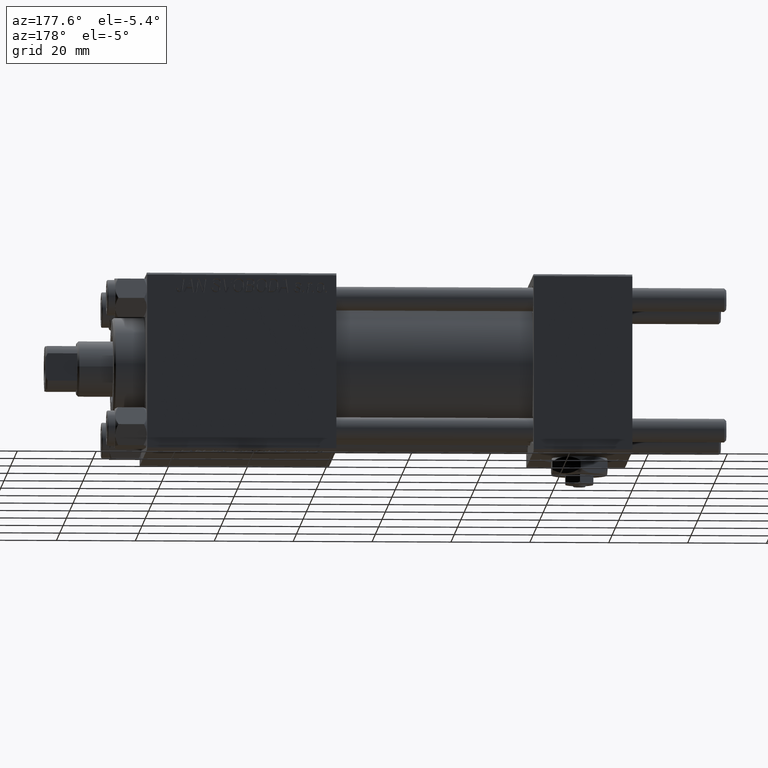
[diagram: clean part render]
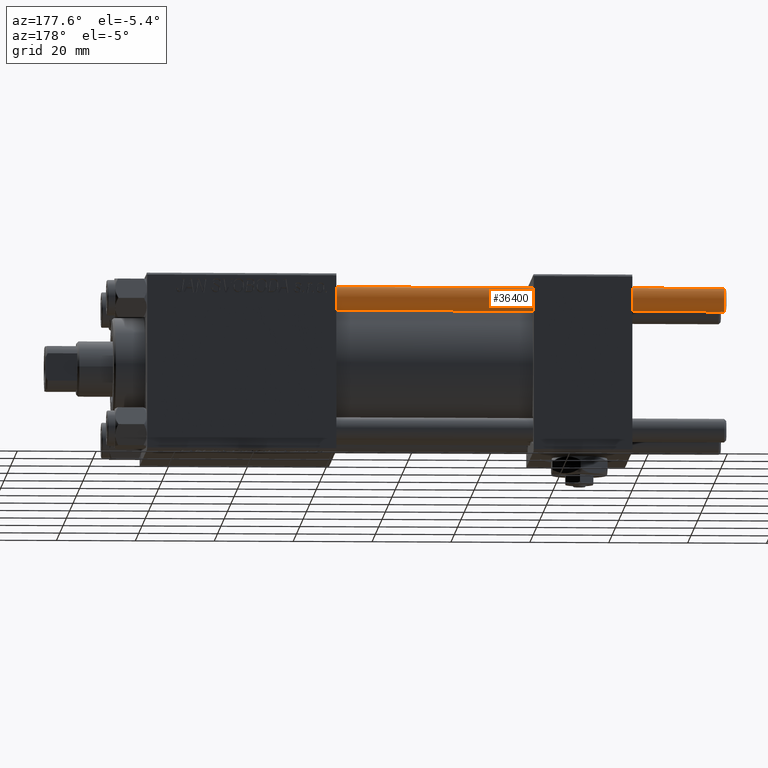
[diagram: same view with one face highlighted and labeled with its STEP entity id]
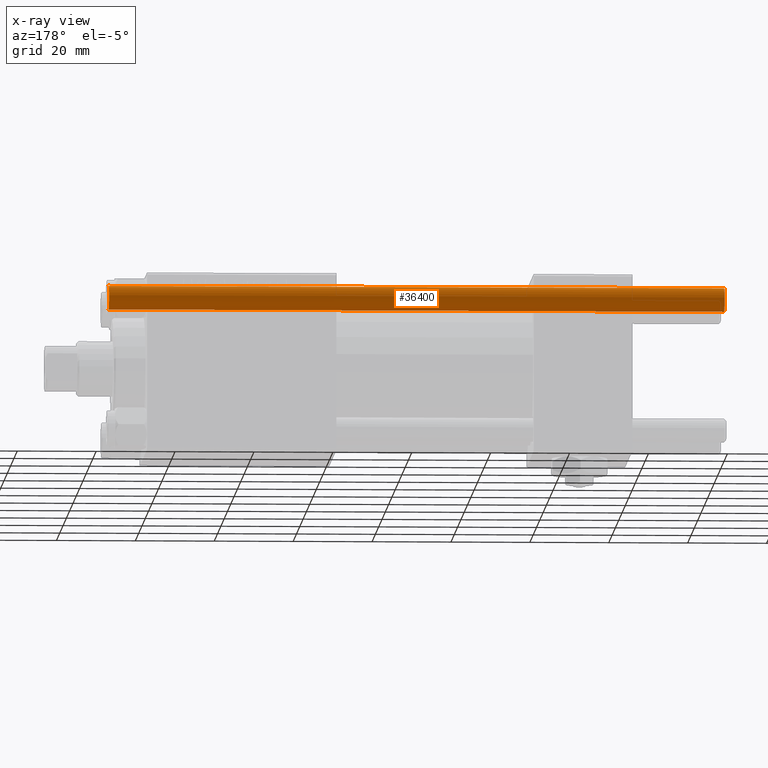
[diagram: x-ray of the same camera — body ghosted, the highlighted face saturated]
A machine part, auxiliary view. The second image highlights one B-rep face of the part: STEP entity #36400.
The next image is the same camera in x-ray: the body ghosted, the highlighted face saturated — about 0% of this face is hidden behind the body in this view.
In plain terms, the highlighted cylindrical surface (edge-blend (fillet) strip) has radius 3 mm, axis along (-1, -0, -0).
Its self-contained STEP definition (entity closure, byte-faithful):
#101 = DIRECTION ( 'NONE',  ( -1.000000000000000000, 0.000000000000000000, 0.000000000000000000 ) ) ;
#466 = DIRECTION ( 'NONE',  ( -0.000000000000000000, -0.000000000000000000, -1.000000000000000000 ) ) ;
#508 = CARTESIAN_POINT ( 'NONE',  ( 3.000000000000000444, 3.673940397442060361E-16, 0.4999999999999726885 ) ) ;
#2075 = AXIS2_PLACEMENT_3D ( 'NONE', #39353, #36198, #101 ) ;
#2854 = CARTESIAN_POINT ( 'NONE',  ( -3.000000000000000444, 0.000000000000000000, 156.5000000000000284 ) ) ;
#3144 = ORIENTED_EDGE ( 'NONE', *, *, #3233, .F. ) ;
#3233 = EDGE_CURVE ( 'NONE', #6104, #36345, #29530, .T. ) ;
#5456 = CARTESIAN_POINT ( 'NONE',  ( -3.000000000000000444, 0.000000000000000000, 157.0000000000000000 ) ) ;
#6104 = VERTEX_POINT ( 'NONE', #2854 ) ;
#6762 = ORIENTED_EDGE ( 'NONE', *, *, #47900, .T. ) ;
#7196 = CARTESIAN_POINT ( 'NONE',  ( 0.000000000000000000, 0.000000000000000000, 0.4999999999999726885 ) ) ;
#7669 = VECTOR ( 'NONE', #12780, 1000.000000000000000 ) ;
#9829 = EDGE_CURVE ( 'NONE', #6104, #39435, #40404, .T. ) ;
#12780 = DIRECTION ( 'NONE',  ( -0.000000000000000000, -0.000000000000000000, -1.000000000000000000 ) ) ;
#16457 = EDGE_CURVE ( 'NONE', #38073, #36345, #23974, .T. ) ;
#16458 = AXIS2_PLACEMENT_3D ( 'NONE', #7196, #32744, #48443 ) ;
#19966 = DIRECTION ( 'NONE',  ( 0.000000000000000000, 0.000000000000000000, -1.000000000000000000 ) ) ;
#20201 = ORIENTED_EDGE ( 'NONE', *, *, #16457, .T. ) ;
#21450 = ORIENTED_EDGE ( 'NONE', *, *, #9829, .T. ) ;
#22650 = FACE_OUTER_BOUND ( 'NONE', #27235, .T. ) ;
#23974 = CIRCLE ( 'NONE', #16458, 3.000000000000000444 ) ;
#26565 = CYLINDRICAL_SURFACE ( 'NONE', #2075, 3.000000000000000444 ) ;
#27235 = EDGE_LOOP ( 'NONE', ( #21450, #6762, #20201, #3144 ) ) ;
#29530 = LINE ( 'NONE', #5456, #7669 ) ;
#32744 = DIRECTION ( 'NONE',  ( -0.000000000000000000, -0.000000000000000000, 1.000000000000000000 ) ) ;
#36198 = DIRECTION ( 'NONE',  ( -0.000000000000000000, -0.000000000000000000, -1.000000000000000000 ) ) ;
#36303 = LINE ( 'NONE', #39976, #39128 ) ;
#36345 = VERTEX_POINT ( 'NONE', #38836 ) ;
#36400 = ADVANCED_FACE ( 'NONE', ( #22650 ), #26565, .T. ) ;
#38073 = VERTEX_POINT ( 'NONE', #508 ) ;
#38283 = CARTESIAN_POINT ( 'NONE',  ( 3.000000000000000444, 3.673940397442060361E-16, 156.5000000000000284 ) ) ;
#38836 = CARTESIAN_POINT ( 'NONE',  ( -3.000000000000000444, 0.000000000000000000, 0.4999999999999726885 ) ) ;
#39128 = VECTOR ( 'NONE', #466, 1000.000000000000000 ) ;
#39353 = CARTESIAN_POINT ( 'NONE',  ( 0.000000000000000000, 0.000000000000000000, 157.0000000000000000 ) ) ;
#39435 = VERTEX_POINT ( 'NONE', #38283 ) ;
#39840 = CARTESIAN_POINT ( 'NONE',  ( 0.000000000000000000, 0.000000000000000000, 156.5000000000000284 ) ) ;
#39976 = CARTESIAN_POINT ( 'NONE',  ( 3.000000000000000444, 3.673940397442060361E-16, 157.0000000000000000 ) ) ;
#40404 = CIRCLE ( 'NONE', #51277, 3.000000000000000444 ) ;
#47900 = EDGE_CURVE ( 'NONE', #39435, #38073, #36303, .T. ) ;
#48443 = DIRECTION ( 'NONE',  ( 1.000000000000000000, 0.000000000000000000, 0.000000000000000000 ) ) ;
#49248 = DIRECTION ( 'NONE',  ( 1.000000000000000000, 0.000000000000000000, 0.000000000000000000 ) ) ;
#51277 = AXIS2_PLACEMENT_3D ( 'NONE', #39840, #19966, #49248 ) ;